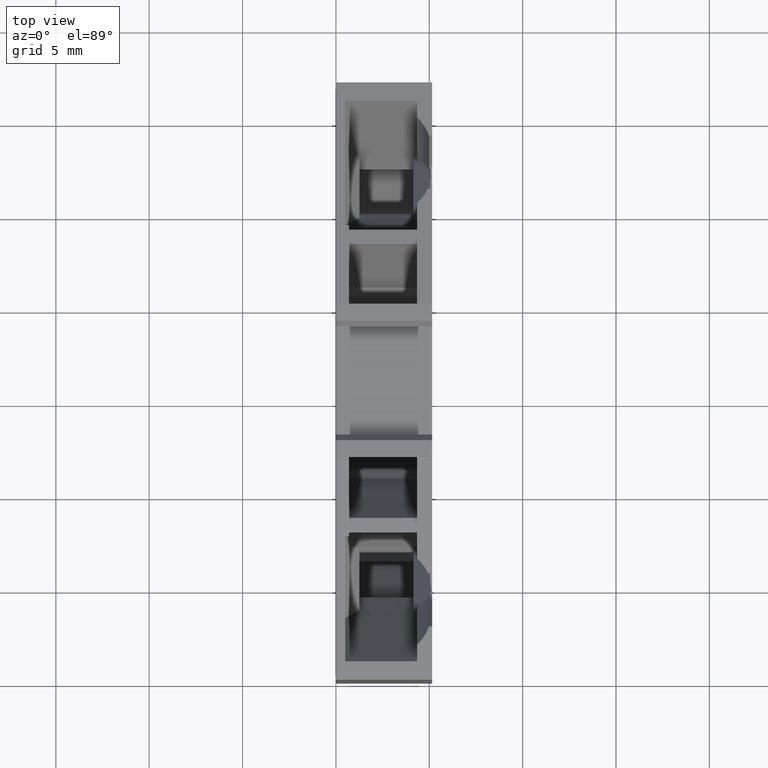
[diagram: clean part render]
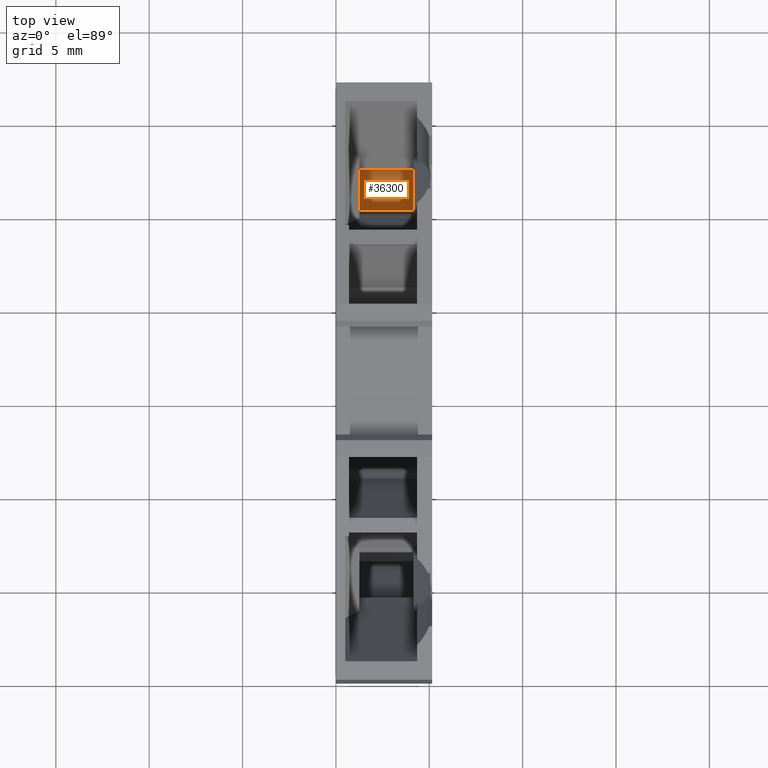
[diagram: same view with one face highlighted and labeled with its STEP entity id]
A machine part, top view. The second image highlights one B-rep face of the part: STEP entity #36300.
In plain terms, the highlighted planar face has unit normal (0, -0.9063, 0.4226).
Its self-contained STEP definition (entity closure, byte-faithful):
#34330=CARTESIAN_POINT('',(4.92265958745834,102.561787937568,
58.9499999999999));
#34340=VERTEX_POINT('',#34330);
#34370=CARTESIAN_POINT('',(20.0392281187329,115.246095016827,
58.9499999999999));
#34380=DIRECTION('',(-0.766044443118989,-0.642787609686527,
9.77354781191315E-18));
#34390=VECTOR('',#34380,1.);
#34400=LINE('',#34370,#34390);
#34410=CARTESIAN_POINT('',(8.67079687790799,105.706848555586,
58.9499999999999));
#34420=VERTEX_POINT('',#34410);
#34430=EDGE_CURVE('',#34420,#34340,#34400,.T.);
#34910=CARTESIAN_POINT('',(8.67079687790798,105.706848555586,
60.1999999999998));
#34920=DIRECTION('',(-8.11609897309848E-19,3.0289693727311E-18,-1.));
#34930=VECTOR('',#34920,1.);
#34940=LINE('',#34910,#34930);
#34950=CARTESIAN_POINT('',(8.67079687790799,105.706848555586,
56.0499999999999));
#34960=VERTEX_POINT('',#34950);
#34970=EDGE_CURVE('',#34420,#34960,#34940,.T.);
#35450=CARTESIAN_POINT('',(20.0392281187329,115.246095016827,
56.0499999999999));
#35460=DIRECTION('',(0.766044443118989,0.642787609686527,
-9.77354781191315E-18));
#35470=VECTOR('',#35460,1.);
#35480=LINE('',#35450,#35470);
#35490=CARTESIAN_POINT('',(4.92265958745833,102.561787937568,
56.0499999999999));
#35500=VERTEX_POINT('',#35490);
#35510=EDGE_CURVE('',#35500,#34960,#35480,.T.);
#36140=CARTESIAN_POINT('',(4.92265958745833,102.561787937568,
56.0499999999999));
#36150=DIRECTION('',(-0.642787609686527,0.766044443118988,
2.84201794224649E-18));
#36160=DIRECTION('',(-0.766044443118988,-0.642787609686527,
3.63930596830089E-17));
#36170=AXIS2_PLACEMENT_3D('',#36140,#36150,#36160);
#36180=PLANE('',#36170);
#36190=ORIENTED_EDGE('',*,*,#34970,.T.);
#36200=ORIENTED_EDGE('',*,*,#34430,.F.);
#36210=CARTESIAN_POINT('',(4.92265958745833,102.561787937568,
56.0499999999999));
#36220=DIRECTION('',(2.97055150580502E-17,2.12158957909186E-17,1.));
#36230=VECTOR('',#36220,1.);
#36240=LINE('',#36210,#36230);
#36250=EDGE_CURVE('',#35500,#34340,#36240,.T.);
#36260=ORIENTED_EDGE('',*,*,#36250,.T.);
#36270=ORIENTED_EDGE('',*,*,#35510,.F.);
#36280=EDGE_LOOP('',(#36270,#36260,#36200,#36190));
#36290=FACE_OUTER_BOUND('',#36280,.T.);
#36300=ADVANCED_FACE('',(#36290),#36180,.T.);